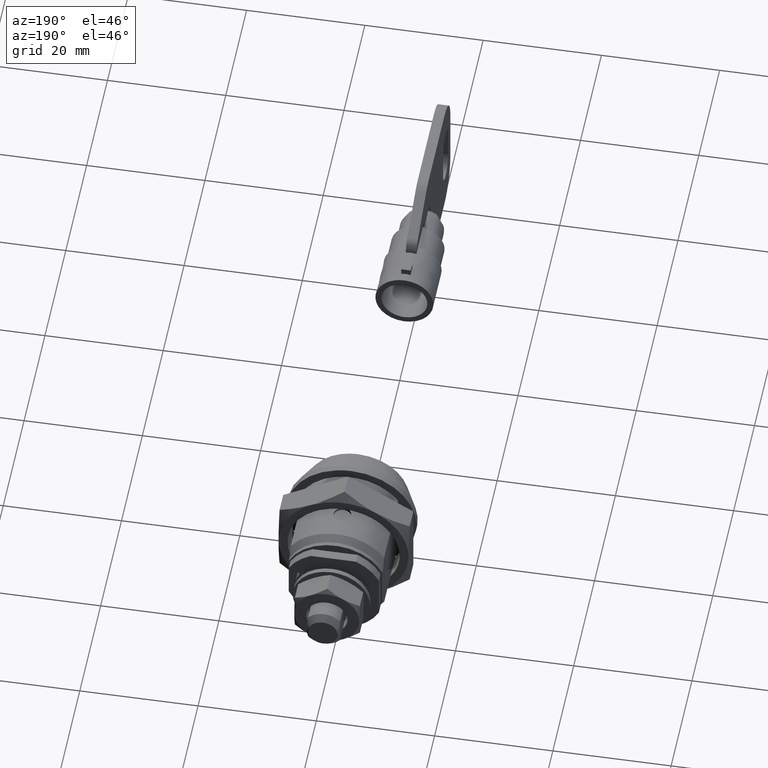
[diagram: clean part render]
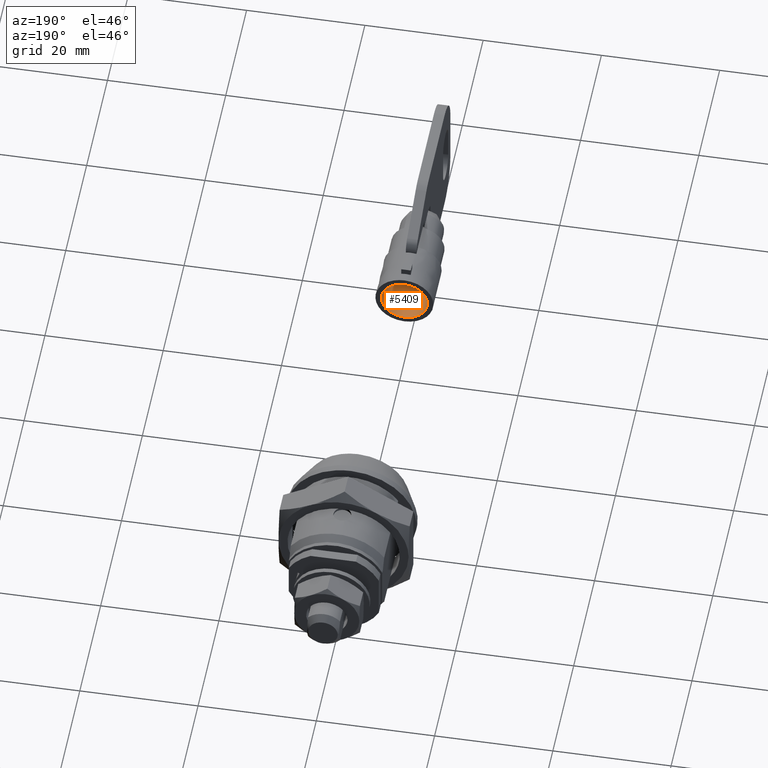
[diagram: same view with one face highlighted and labeled with its STEP entity id]
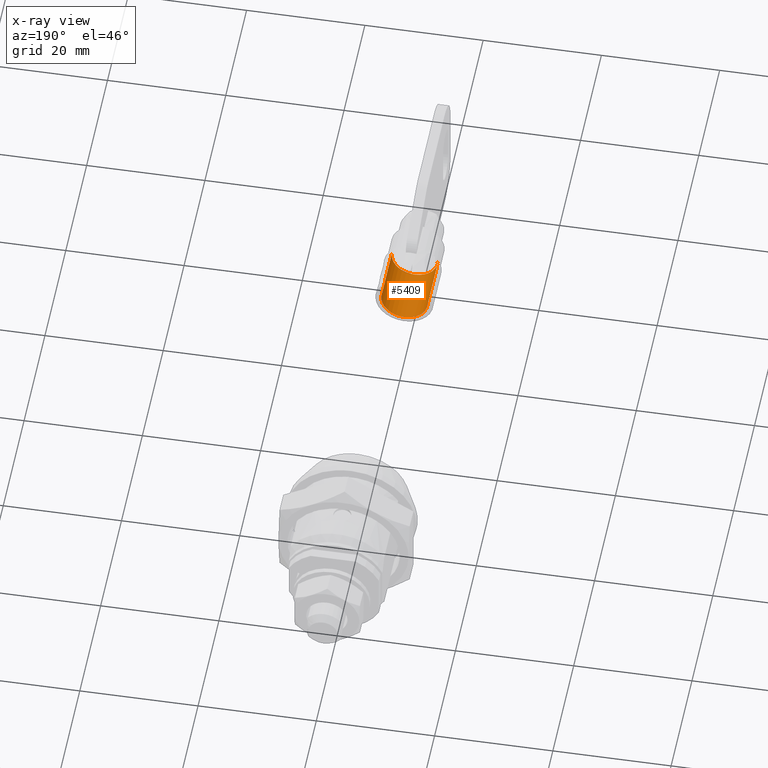
[diagram: x-ray of the same camera — body ghosted, the highlighted face saturated]
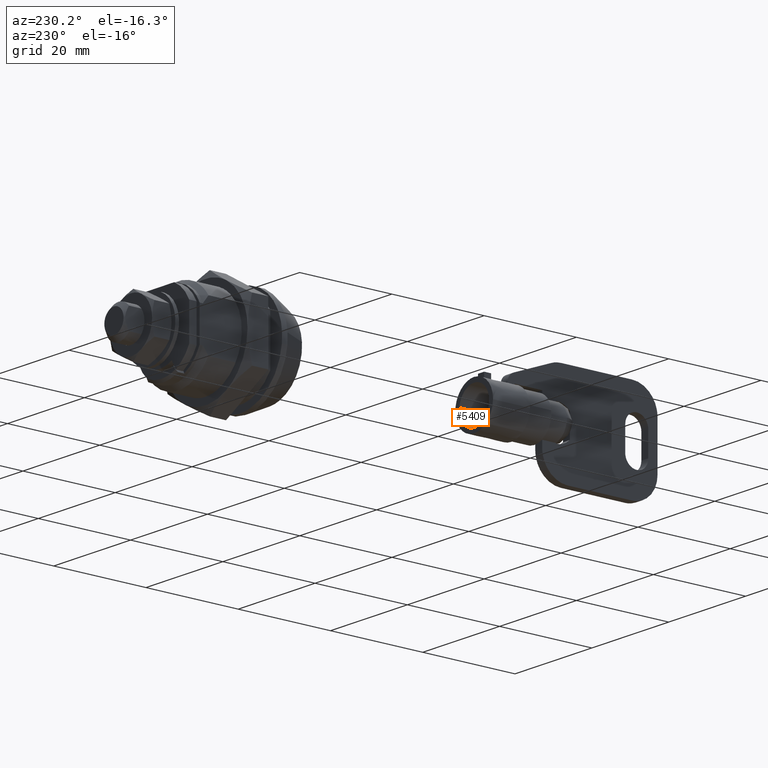
[diagram: same view with one face highlighted and labeled with its STEP entity id]
A machine part, auxiliary view. The second image highlights one B-rep face of the part: STEP entity #5409.
The next image is the same camera in x-ray: the body ghosted, the highlighted face saturated — about 0% of this face is hidden behind the body in this view.
A second angle (auxiliary view) of the same face is appended — the face is thin or edge-on in the first view.
In plain terms, the highlighted face is a freeform B-spline surface patch.
Its self-contained STEP definition (entity closure, byte-faithful):
#5307=CARTESIAN_POINT('',(-54.740192999999920,-3.872737152818299,0.460333515161358));
#5308=CARTESIAN_POINT('',(-54.740192999999906,-3.885911700249562,0.349497441688113));
#5309=CARTESIAN_POINT('',(-54.740192999999913,-3.892725713845280,0.238089304185942));
#5310=CARTESIAN_POINT('',(-54.740192999999906,-4.130815018031222,-3.654636409659337));
#5311=CARTESIAN_POINT('',(-54.740192999999913,-0.238089304185942,-3.892725713845280));
#5312=CARTESIAN_POINT('',(-54.740192999999906,3.654636409659337,-4.130815018031222));
#5313=CARTESIAN_POINT('',(-54.740192999999913,3.892725713845280,-0.238089304185942));
#5314=CARTESIAN_POINT('',(-44.233942999999897,-3.872737152818299,0.460333515161358));
#5315=CARTESIAN_POINT('',(-44.233942999999904,-3.885911700249562,0.349497441688113));
#5316=CARTESIAN_POINT('',(-44.233942999999890,-3.892725713845280,0.238089304185942));
#5317=CARTESIAN_POINT('',(-44.233942999999890,-4.130815018031222,-3.654636409659337));
#5318=CARTESIAN_POINT('',(-44.233942999999890,-0.238089304185942,-3.892725713845280));
#5319=CARTESIAN_POINT('',(-44.233942999999890,3.654636409659337,-4.130815018031222));
#5320=CARTESIAN_POINT('',(-44.233942999999890,3.892725713845280,-0.238089304185942));
#5328=(BOUNDED_SURFACE()B_SPLINE_SURFACE(2,1,((#5307,#5314),(#5308,#5315),(#5309,#5316),(#5310,#5317),(#5311,#5318),(#5312,#5319),(#5313,#5320)),.UNSPECIFIED.,.F.,.F.,.U.)B_SPLINE_SURFACE_WITH_KNOTS((3,2,2,3),(2,2),(0.0,0.258469262920812,6.720200835941093,13.181932408961380),(0.0,10.506250000000019),.UNSPECIFIED.)GEOMETRIC_REPRESENTATION_ITEM()RATIONAL_B_SPLINE_SURFACE(((0.977505800795127,0.977505800795127),(0.988284271247462,0.988284271247462),(1.0,1.0),(0.707106781186548,0.707106781186548),(1.0,1.0),(0.707106781186548,0.707106781186548),(1.0,1.0)))REPRESENTATION_ITEM('')SURFACE());
#5329=CARTESIAN_POINT('',(-54.490192999999863,-3.872737565735857,0.460330041303052));
#5330=VERTEX_POINT('',#5329);
#5331=CARTESIAN_POINT('',(-54.490192999999898,0.0,-3.900000000000000));
#5332=VERTEX_POINT('',#5331);
#5333=CARTESIAN_POINT('',(-54.490192999999863,-3.872737565735857,0.460330041303052));
#5334=CARTESIAN_POINT('',(-54.490192999999906,-3.900000000000000,0.230972311350937));
#5335=CARTESIAN_POINT('',(-54.490192999999898,-3.900000000000000,0.0));
#5336=CARTESIAN_POINT('',(-54.490192999999898,-3.899999999999999,-3.899999999999999));
#5337=CARTESIAN_POINT('',(-54.490192999999898,0.0,-3.900000000000000));
#5345=(BOUNDED_CURVE()B_SPLINE_CURVE(2,(#5333,#5334,#5335,#5336,#5337),.UNSPECIFIED.,.F.,.U.)B_SPLINE_CURVE_WITH_KNOTS((3,2,3),(0.229562625112138,0.250000000000000,0.500000000000000),.UNSPECIFIED.)CURVE()GEOMETRIC_REPRESENTATION_ITEM()RATIONAL_B_SPLINE_CURVE((0.956027051323433,0.976056125939987,1.0,0.707106781186548,1.0))REPRESENTATION_ITEM(''));
#5346=EDGE_CURVE('',#5330,#5332,#5345,.T.);
#5347=ORIENTED_EDGE('',*,*,#5346,.F.);
#5348=CARTESIAN_POINT('',(-44.490192999999898,-3.872737560777172,0.460330083020575));
#5349=VERTEX_POINT('',#5348);
#5350=CARTESIAN_POINT('',(-54.490192999999863,-3.872737565735857,0.460330041303052));
#5351=CARTESIAN_POINT('',(-44.490192999999898,-3.872737560777172,0.460330083020575));
#5352=QUASI_UNIFORM_CURVE('',1,(#5350,#5351),.UNSPECIFIED.,.F.,.U.);
#5353=EDGE_CURVE('',#5330,#5349,#5352,.T.);
#5354=ORIENTED_EDGE('',*,*,#5353,.T.);
#5355=CARTESIAN_POINT('',(-44.490192999999898,0.0,-3.900000000000000));
#5356=VERTEX_POINT('',#5355);
#5357=CARTESIAN_POINT('',(-44.490192999999898,-3.872737560777172,0.460330083020575));
#5358=CARTESIAN_POINT('',(-44.490192999999906,-3.900000000000000,0.230972332430209));
#5359=CARTESIAN_POINT('',(-44.490192999999898,-3.900000000000000,0.0));
#5360=CARTESIAN_POINT('',(-44.490192999999898,-3.899999999999999,-3.899999999999999));
#5361=CARTESIAN_POINT('',(-44.490192999999898,0.0,-3.900000000000000));
#5369=(BOUNDED_CURVE()B_SPLINE_CURVE(2,(#5357,#5358,#5359,#5360,#5361),.UNSPECIFIED.,.F.,.U.)B_SPLINE_CURVE_WITH_KNOTS((3,2,3),(0.229562623291617,0.250000000000000,0.500000000000000),.UNSPECIFIED.)CURVE()GEOMETRIC_REPRESENTATION_ITEM()RATIONAL_B_SPLINE_CURVE((0.956027047755133,0.976056123807115,1.0,0.707106781186548,1.0))REPRESENTATION_ITEM(''));
#5370=EDGE_CURVE('',#5349,#5356,#5369,.T.);
#5371=ORIENTED_EDGE('',*,*,#5370,.T.);
#5372=CARTESIAN_POINT('',(-44.490192999999891,3.892725713839697,-0.238089304277232));
#5373=VERTEX_POINT('',#5372);
#5374=CARTESIAN_POINT('',(-44.490192999999898,0.0,-3.900000000000000));
#5375=CARTESIAN_POINT('',(-44.490192999999891,3.668753660759822,-3.900000000000000));
#5376=CARTESIAN_POINT('',(-44.490192999999884,3.892725713839697,-0.238089304277232));
#5384=(BOUNDED_CURVE()B_SPLINE_CURVE(2,(#5374,#5375,#5376),.UNSPECIFIED.,.F.,.U.)B_SPLINE_CURVE_WITH_KNOTS((3,3),(0.500000000000000,0.739332962233876),.UNSPECIFIED.)CURVE()GEOMETRIC_REPRESENTATION_ITEM()RATIONAL_B_SPLINE_CURVE((1.0,0.719603993292647,0.976072041655858))REPRESENTATION_ITEM(''));
#5385=EDGE_CURVE('',#5356,#5373,#5384,.T.);
#5386=ORIENTED_EDGE('',*,*,#5385,.T.);
#5387=CARTESIAN_POINT('',(-54.490192999999913,3.892725713839697,-0.238089304277231));
#5388=VERTEX_POINT('',#5387);
#5389=CARTESIAN_POINT('',(-54.490192999999913,3.892725713839697,-0.238089304277231));
#5390=CARTESIAN_POINT('',(-44.490192999999891,3.892725713839697,-0.238089304277232));
#5391=QUASI_UNIFORM_CURVE('',1,(#5389,#5390),.UNSPECIFIED.,.F.,.U.);
#5392=EDGE_CURVE('',#5388,#5373,#5391,.T.);
#5393=ORIENTED_EDGE('',*,*,#5392,.F.);
#5394=CARTESIAN_POINT('',(-54.490192999999898,0.0,-3.900000000000000));
#5395=CARTESIAN_POINT('',(-54.490192999999898,3.668753660759822,-3.900000000000000));
#5396=CARTESIAN_POINT('',(-54.490192999999913,3.892725713839697,-0.238089304277231));
#5404=(BOUNDED_CURVE()B_SPLINE_CURVE(2,(#5394,#5395,#5396),.UNSPECIFIED.,.F.,.U.)B_SPLINE_CURVE_WITH_KNOTS((3,3),(0.500000000000000,0.739332962233876),.UNSPECIFIED.)CURVE()GEOMETRIC_REPRESENTATION_ITEM()RATIONAL_B_SPLINE_CURVE((1.0,0.719603993292647,0.976072041655858))REPRESENTATION_ITEM(''));
#5405=EDGE_CURVE('',#5332,#5388,#5404,.T.);
#5406=ORIENTED_EDGE('',*,*,#5405,.F.);
#5407=EDGE_LOOP('',(#5347,#5354,#5371,#5386,#5393,#5406));
#5408=FACE_OUTER_BOUND('',#5407,.T.);
#5409=ADVANCED_FACE('',(#5408),#5328,.F.);